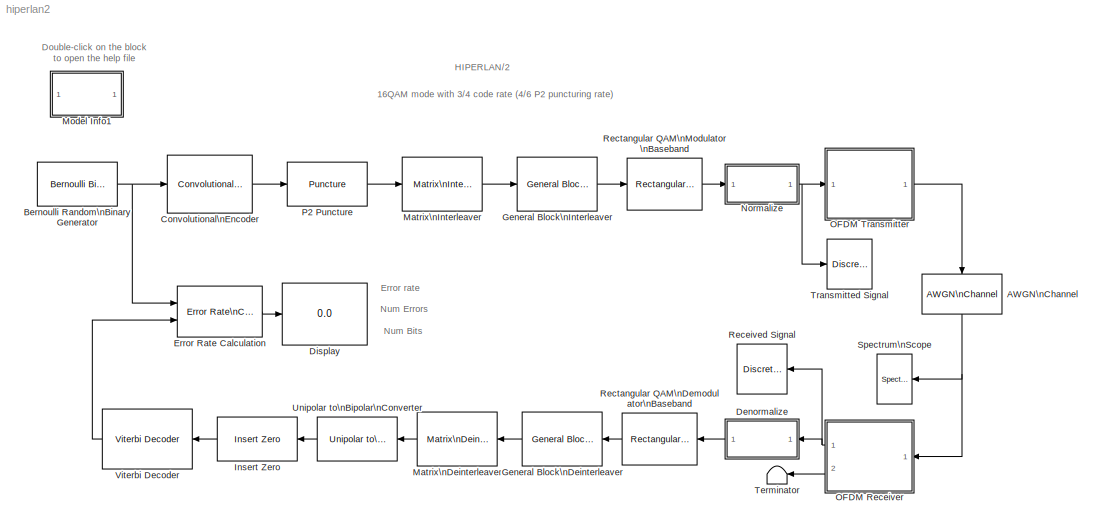
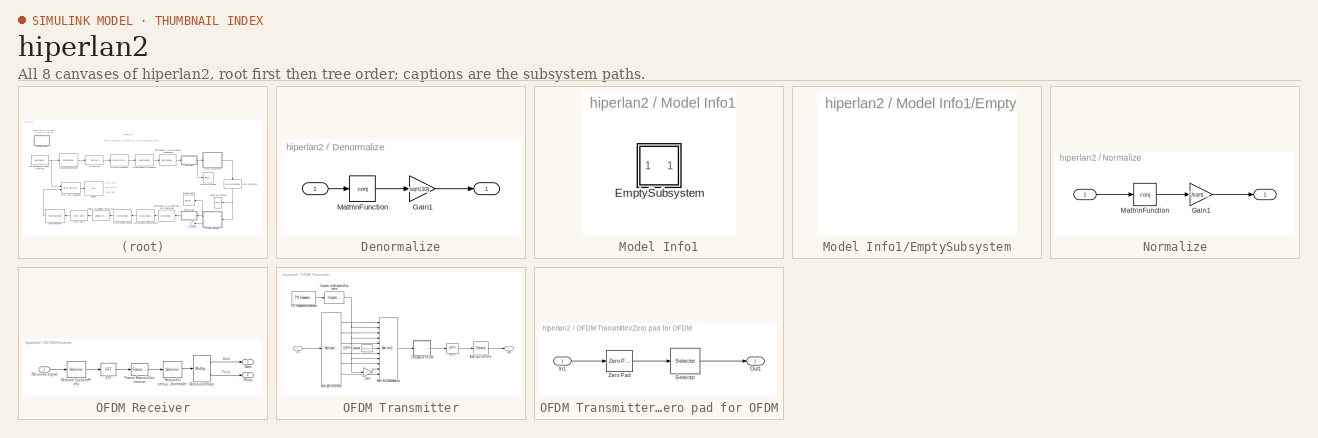
[diagram: thumbnail index - all 8 canvases of the model, root first then tree order]
MODEL hiperlan2
KIND model
BLOCK [Reference] AWGN\nChannel  REF=commchan2/AWGN\nChannel
  EbNodB = 10
  EsNodB = 40
  Ports = [1, 1]
  Ps = 0.01
  SNRdB = 15
  ShowPortLabels = on
  SourceBlock = commchan2/AWGN\nChannel
  SourceType = AWGN Channel
  Tsym = 4e-6/80
  bitsPerSym = 1
  noiseMode = Signal to noise ratio  (SNR)
  seed = 1
  variance = 1
BLOCK [Reference] Bernoulli Random\nBinary Generator  REF=commrandsrc2/Bernoulli Binary\nGenerator
  P = 0.5
  Ports = [0, 1]
  ShowPortLabels = on
  SourceBlock = commrandsrc2/Bernoulli Binary\nGenerator
  SourceType = Bernoulli Binary Generator
  Ts = 4e-6/144
  frameBased = on
  orient = off
  sampPerFrame = 144
  seed = 20394875
BLOCK [Reference] Convolutional\nEncoder  REF=commcnvcod2/Convolutional\nEncoder
  Ports = [1, 1]
  SourceBlock = commcnvcod2/Convolutional\nEncoder
  SourceType = Convolutional Encoder
  reset = None
  trellis = poly2trellis(7, [133 171])
BLOCK [SubSystem] Denormalize
  MaskDisplay = disp('Denormalize');
  MaskIconFrame = on
  MaskIconOpaque = on
  MaskIconRotate = none
  MaskIconUnits = autoscale
  MinAlgLoopOccurrences = off
  Ports = [1, 1]
  PropExecContextAcrossSSBoundary = on
  RTWSystemCode = Auto
  TreatAsAtomicUnit = off
BLOCK [Outport] Denormalize/  
  BusOutputAsStruct = off
  IconDisplay = Port number
BLOCK [Inport] Denormalize/   
  IconDisplay = Port number
  LatchInput = off
BLOCK [Gain] Denormalize/Gain1
  Gain = sqrt(10)
BLOCK [Math] Denormalize/Math\nFunction
  Operator = conj
  Ports = [1, 1]
BLOCK [Display] Display
  Decimation = 1
  Ports = [1]
BLOCK [Reference] Error Rate Calculation  REF=commsink2/Error Rate\nCalculation
  N = 34
  PMode = Port
  Ports = [2, 1]
  RsMode2 = off
  SourceBlock = commsink2/Error Rate\nCalculation
  SourceType = Error Rate Calculation
  WsName = ErrorVec
  cp_mode = Entire frame
  maxBits = 1e6
  numErr = 100
  st_delay = 0
  stop = off
  subframe = []
BLOCK [Reference] General Block\nDeinterleaver  REF=commblkintrlv2/General Block\nDeinterleaver
  Ports = [1, 1]
  SourceBlock = commblkintrlv2/General Block\nDeinterleaver
  SourceType = General Block Deinterleaver
  elements = [ 2*floor( [0:191]/2 ) + mod( ([0:191] + 192 - floor( 16*[0:191]/192 ) ) ,2 ) + 1]'
BLOCK [Reference] General Block\nInterleaver  REF=commblkintrlv2/General Block\nInterleaver
  Ports = [1, 1]
  SourceBlock = commblkintrlv2/General Block\nInterleaver
  SourceType = General Block Interleaver
  elements = [ 2*floor( [0:191]/2 ) + mod( ([0:191] + 192 - floor( 16*[0:191]/192 ) ) ,2 ) + 1]'
BLOCK [Reference] Insert Zero  REF=commsequence2/Insert Zero
  Ports = [1, 1]
  SourceBlock = commsequence2/Insert Zero
  SourceType = Insert Zero
  insertZeroVector = [1 1 1 0 0 1]'
BLOCK [Reference] Matrix\nDeinterleaver  REF=commblkintrlv2/Matrix\nDeinterleaver
  Ncols = 12
  Nrows = 16
  Ports = [1, 1]
  ShowPortLabels = on
  SourceBlock = commblkintrlv2/Matrix\nDeinterleaver
  SourceType = Matrix Deinterleaver
BLOCK [Reference] Matrix\nInterleaver  REF=commblkintrlv2/Matrix\nInterleaver
  Ncols = 12
  Nrows = 16
  Ports = [1, 1]
  ShowPortLabels = on
  SourceBlock = commblkintrlv2/Matrix\nInterleaver
  SourceType = Matrix Interleaver
BLOCK [SubSystem] Model Info1
  CopyFcn = slcm CopyBlock;
  DeleteFcn = slcm Cancel;
  InitFcn = slcm('UpdateAllCMBlocksInThisModelInit')
  LoadFcn = slcm LoadBlock;
  MaskCallbackString = ||||||||||||||||||||||||||||||
  MaskDescription = This block allows revision control information to be displayed within the model.
  MaskDisplay = text(str2num(LeftAlignmentValue), 0.5, MaskDisplayString, 'HorizontalAlignment', HorizontalTextAlignment)\n
  MaskEnableString = on,on,on,on,on,on,on,on,on,on,on,on,on,on,on,on,on,on,on,on,on,on,on,on,on,on,on,on,on,on,on
  MaskIconFrame = on
  MaskIconOpaque = on
  MaskIconRotate = none
  MaskIconUnits = normalized
  MaskPromptString = InitialSaveTempField|InitialBlockCM|BlockCM|Frame|SaveTempField|DisplayStringWithTags|MaskDisplayString|HorizontalTextAlignment|LeftAlignmentValue|SourceBlockDiagram|TagMaxNumber|CMTag1|CMTag2|CMTag3|CMTag4|CMTag5|CMTag6|CMTag7|CMTag8|CMTag9|CMTag10|CMTag11|CMTag12|CMTag13|CMTag14|CMTag15|CMTag16|CMTag17|CMTag18|CMTag19|CMTag20
  MaskSelfModifiable = on
  MaskStyleString = edit,edit,edit,edit,edit,edit,edit,edit,edit,edit,edit,edit,edit,edit,edit,edit,edit,edit,edit,edit,edit,edit,edit,edit,edit,edit,edit,edit,edit,edit,edit
  MaskTabNameString = ,,,,,,,,,,,,,,,,,,,,,,,,,,,,,,
  MaskToolTipString = on,on,on,on,on,on,on,on,on,on,on,on,on,on,on,on,on,on,on,on,on,on,on,on,on,on,on,on,on,on,on
  MaskTunableValueString = on,on,on,on,on,on,on,on,on,on,on,on,on,on,on,on,on,on,on,on,on,on,on,on,on,on,on,on,on,on,on
  MaskType = CMBlock
  MaskValueString = |None|None|on||Info|Info|Center|0.5|hiperlan2|20||||||||||||||||||||
  MaskVarAliasString = ,,,,,,,,,,,,,,,,,,,,,,,,,,,,,,
  MaskVariables = InitialSaveTempField=&1;InitialBlockCM=&2;BlockCM=&3;Frame=&4;SaveTempField=&5;DisplayStringWithTags=&6;MaskDisplayString=&7;HorizontalTextAlignment=&8;LeftAlignmentValue=&9;SourceBlockDiagram=&10;TagMaxNumber=@11;CMTag1=&12;CMTag2=&13;CMTag3=&14;CMTag4=&15;CMTag5=&16;CMTag6=&17;CMTag7=&18;CMTag8=&19;CMTag9=&20;CMTag10=&21;CMTag11=&22;CMTag12=&23;CMTag13=&24;CMTag14=&25;CMTag15=&26;CMTag16=&27;CMT...<+45ch>
  MaskVisibilityString = off,off,off,off,off,off,off,off,off,off,off,off,off,off,off,off,off,off,off,off,off,off,off,off,off,off,off,off,off,off,off
  MinAlgLoopOccurrences = off
  NameChangeFcn = slcm Rename;
  OpenFcn = commdemohelp;
  Ports = []
  PostSaveFcn = slcm('UpdateAllCMBlocksInThisModel')
  PropExecContextAcrossSSBoundary = on
  RTWSystemCode = Auto
  TreatAsAtomicUnit = off
BLOCK [SubSystem] Model Info1/EmptySubsystem
  MinAlgLoopOccurrences = off
  Ports = []
  PropExecContextAcrossSSBoundary = on
  RTWSystemCode = Auto
  TreatAsAtomicUnit = off
BLOCK [SubSystem] Normalize
  MaskDisplay = disp('Normalize')
  MaskIconFrame = on
  MaskIconOpaque = on
  MaskIconRotate = none
  MaskIconUnits = autoscale
  MinAlgLoopOccurrences = off
  Ports = [1, 1]
  PropExecContextAcrossSSBoundary = on
  RTWSystemCode = Auto
  TreatAsAtomicUnit = off
BLOCK [Outport] Normalize/  
  BusOutputAsStruct = off
  IconDisplay = Port number
BLOCK [Inport] Normalize/   
  IconDisplay = Port number
  LatchInput = off
BLOCK [Gain] Normalize/Gain1
  Gain = 1/sqrt(10)
BLOCK [Math] Normalize/Math\nFunction
  Operator = conj
  Ports = [1, 1]
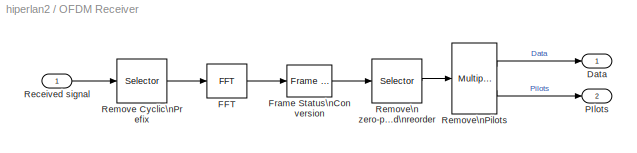
BLOCK [SubSystem] OFDM Receiver
  MaskDisplay = disp('OFDM\\nReceiver');\nport_label('output',2,'pilots')
  MaskIconFrame = on
  MaskIconOpaque = on
  MaskIconRotate = none
  MaskIconUnits = autoscale
  MinAlgLoopOccurrences = off
  Ports = [1, 2]
  PropExecContextAcrossSSBoundary = on
  RTWSystemCode = Auto
  TreatAsAtomicUnit = off
BLOCK [Outport] OFDM Receiver/Data
  BusOutputAsStruct = off
  IconDisplay = Port number
BLOCK [Reference] OFDM Receiver/FFT  REF=dspxfrm3/FFT
  BitRevOrder = off
  CompMethod = Table lookup
  Ports = [1, 1]
  SkipNorm = off
  SourceBlock = dspxfrm3/FFT
  SourceType = FFT
  TableOpt = Speed
  accumFracLength = 30
  accumMode = Same as product output
  accumWordLength = 32
  additionalParams = off
  allowOverrides = on
  firstCoeffFracLength = 15
  firstCoeffMode = User-defined
  firstCoeffWordLength = 16
  outputFracLength = 15
  outputMode = Same as input
  outputWordLength = 16
  overflowMode = off
  prodOutputFracLength = 30
  prodOutputMode = Same as input
  prodOutputWordLength = 32
  roundingMode = Floor
BLOCK [Reference] OFDM Receiver/Frame Status\nConversion  REF=dspsigattribs/Frame Status\nConversion
  Ports = [1, 1]
  ShowPortLabels = off
  SourceBlock = dspsigattribs/Frame Status\nConversion
  SourceType = Frame Status Conversion
  growRefPort = off
  outframe = Frame-based
BLOCK [Outport] OFDM Receiver/PIlots
  BusOutputAsStruct = off
  IconDisplay = Port number
  Port = 2
BLOCK [Inport] OFDM Receiver/Received signal
  IconDisplay = Port number
  LatchInput = off
BLOCK [Selector] OFDM Receiver/Remove Cyclic\nPrefix
  Elements = [17:80]
  InputPortWidth = 80
  Ports = [1, 1]
BLOCK [Selector] OFDM Receiver/Remove\n zero-padding\nand\nreorder
  Elements = [39:64 1:27]
  InputPortWidth = 64
  Ports = [1, 1]
BLOCK [Reference] OFDM Receiver/Remove\nPilots  REF=dspindex/Multiport\nSelector
  Ports = [1, 2]
  SourceBlock = dspindex/Multiport\nSelector
  SourceType = Multiport Selector
  idxCellArray = {[1:5 7:19 21:26 28:33 35:47 49:53],[6 20 34 48]}
  idxErrMode = Clip Index
  rowsOrCols = Rows
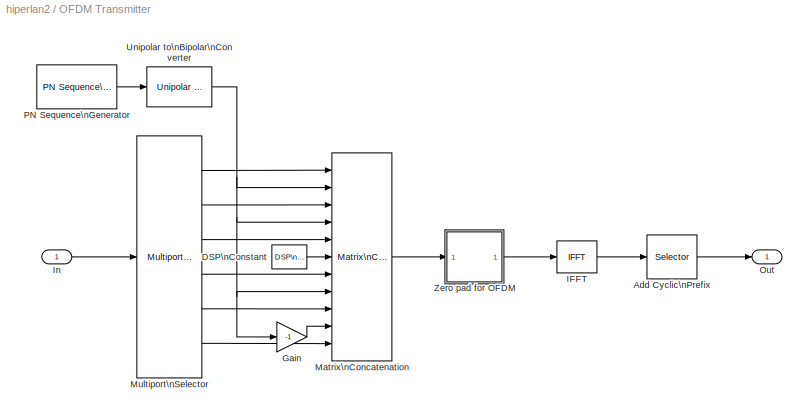
BLOCK [SubSystem] OFDM Transmitter
  MaskDisplay = disp('OFDM\\nTransmitter')
  MaskIconFrame = on
  MaskIconOpaque = on
  MaskIconRotate = none
  MaskIconUnits = autoscale
  MinAlgLoopOccurrences = off
  Ports = [1, 1]
  PropExecContextAcrossSSBoundary = on
  RTWSystemCode = Auto
  TreatAsAtomicUnit = off
BLOCK [Selector] OFDM Transmitter/Add Cyclic\nPrefix
  Elements = [49:64 1:64]
  InputPortWidth = 64
  Ports = [1, 1]
BLOCK [Reference] OFDM Transmitter/DSP\nConstant  REF=dspsrcs4/DSP\nConstant
  FramebasedOutput = on
  InterpretAs1D = off
  Ports = [0, 1]
  SampleMode = Discrete
  ShowPortLabels = on
  SourceBlock = dspsrcs4/DSP\nConstant
  SourceType = DSP Constant
  Ts = 4e-6
  Value = 0+0i
  additionalParams = off
  allowOverrides = on
  continuousOutput = Sample-based
  dataType = Inherit from 'Constant value'
  discreteOutput = Frame-based
  fracBitsMode = Best precision
  framePeriod = 4e-6
  numFracBits = 15
  sampTime = 4e-6
  udDataType = sfix(16)
  wordLen = 16
BLOCK [Gain] OFDM Transmitter/Gain
  Gain = -1
BLOCK [Reference] OFDM Transmitter/IFFT  REF=dspxfrm3/IFFT
  BitRevOrder = off
  CompMethod = Table lookup
  Ports = [1, 1]
  SkipNorm = off
  SourceBlock = dspxfrm3/IFFT
  SourceType = IFFT
  TableOpt = Speed
  accumFracLength = 30
  accumMode = Same as product output
  accumWordLength = 32
  additionalParams = off
  allowOverrides = on
  cs_in = off
  firstCoeffFracLength = 15
  firstCoeffMode = User-defined
  firstCoeffWordLength = 16
  mode = Complex
  outputFracLength = 15
  outputMode = Same as input
  outputWordLength = 16
  overflowMode = off
  prodOutputFracLength = 30
  prodOutputMode = Same as input
  prodOutputWordLength = 32
  roundingMode = Floor
BLOCK [Inport] OFDM Transmitter/In
  IconDisplay = Port number
  LatchInput = off
BLOCK [Reference] OFDM Transmitter/Matrix\nConcatenation  REF=simulink/Math\nOperations/Matrix\nConcatenation
  Ports = [11, 1]
  SourceBlock = simulink/Math\nOperations/Matrix\nConcatenation
  SourceType = Matrix Concatenation
  catMethod = Vertical
  numInports = 11
BLOCK [Reference] OFDM Transmitter/Multiport\nSelector  REF=dspindex/Multiport\nSelector
  Ports = [1, 6]
  SourceBlock = dspindex/Multiport\nSelector
  SourceType = Multiport Selector
  idxCellArray = {1:5,6:18,19:24,25:30,31:43,44:48}
  idxErrMode = Clip Index
  rowsOrCols = Rows
BLOCK [Outport] OFDM Transmitter/Out
  BusOutputAsStruct = off
  IconDisplay = Port number
BLOCK [Reference] OFDM Transmitter/PN Sequence\nGenerator  REF=commseqgen2/PN Sequence\nGenerator
  Ports = [0, 1]
  SourceBlock = commseqgen2/PN Sequence\nGenerator
  SourceType = PN Sequence Generator
  Ts = 4e-6
  frameBased = off
  ini_sta = [1 1 1 1 1 1 1]
  poly = [1 0 0 1 0 0 0 1]
  reset = off
  sampPerFrame = 1
  shift = 0
BLOCK [Reference] OFDM Transmitter/Unipolar to\nBipolar\nConverter  REF=commutil2/Unipolar to\nBipolar\nConverter
  M = 2
  Ports = [1, 1]
  ShowPortLabels = on
  SourceBlock = commutil2/Unipolar to\nBipolar\nConverter
  SourceType = Unipolar to Bipolar Converter
  polarity = Negative
BLOCK [SubSystem] OFDM Transmitter/Zero pad for OFDM
  MaskDisplay = disp('Zero pad\\nfor OFDM');
  MaskIconFrame = on
  MaskIconOpaque = on
  MaskIconRotate = none
  MaskIconUnits = autoscale
  MinAlgLoopOccurrences = off
  Ports = [1, 1]
  PropExecContextAcrossSSBoundary = on
  RTWSystemCode = Auto
  TreatAsAtomicUnit = off
BLOCK [Inport] OFDM Transmitter/Zero pad for OFDM/In1
  IconDisplay = Port number
  LatchInput = off
BLOCK [Outport] OFDM Transmitter/Zero pad for OFDM/Out1
  BusOutputAsStruct = off
  IconDisplay = Port number
BLOCK [Selector] OFDM Transmitter/Zero pad for OFDM/Selector
  Elements = [27:64 1:26]
  InputPortWidth = 64
  Ports = [1, 1]
BLOCK [Reference] OFDM Transmitter/Zero pad for OFDM/Zero Pad  REF=dspsigops/Zero Pad
  Ports = [1, 1]
  SourceBlock = dspsigops/Zero Pad
  SourceType = Zero Pad
  numOutCols = 1
  numOutRows = 64
  padNumOutColsSpecMethod = User-specified
  padNumOutRowsSpecMethod = User-specified
  padSigAt = End
  trunc_flag = None
  zpadAlong = Columns
BLOCK [Reference] P2 Puncture  REF=commsequence2/Puncture
  Ports = [1, 1]
  SourceBlock = commsequence2/Puncture
  SourceType = Puncture
  punctureVector = [1 1 1 0 0 1]'
BLOCK [Reference] Received Signal  REF=commsink2/Discrete-Time\nScatter Plot\nScope
  AxisGrid = on
  FigPos = figposition([54    51    35    40])
  FrameNumber = off
  LineColors = b
  LineMarkers = .
  Ports = [1]
  ShowPortLabels = on
  SourceBlock = commsink2/Discrete-Time\nScatter Plot\nScope
  SourceType = Discrete-Time Scatter Plot Scope
  Tag = ScatterPlot
  block_type_ = scatter
  fading = on
  figTitle = Scatter Plot
  inphaseLabel = In-phase Amplitude
  numLinesMax = 8
  numNewFrames = 80
  numTraces = 160
  offsetEye = 0
  openScopeAtSimStart = on
  quadratureLabel = Quadrature Amplitude
  render = off
  sampPerSymb = 1
  xMax = 1.5
  xMin = -1.5
  yMax = 1.5
  yMin = -1.5
BLOCK [Reference] Rectangular QAM\nDemodulator\nBaseband  REF=commdigbbndam2/Rectangular QAM\nDemodulator\nBaseband
  AvgPow = 1
  Dec = Gray
  M = 16
  MinDist = 2
  OutType = Bit
  PeakPow = 1
  Ph = 0
  Ports = [1, 1]
  PowType = Min. distance between symbols
  SourceBlock = commdigbbndam2/Rectangular QAM\nDemodulator\nBaseband
  SourceType = Rectangular QAM Demodulator Baseband
  numSamp = 1
BLOCK [Reference] Rectangular QAM\nModulator\nBaseband  REF=commdigbbndam2/Rectangular QAM\nModulator\nBaseband
  AvgPow = 1
  Enc = Gray
  InType = Bit
  M = 16
  MinDist = 2
  PeakPow = 1
  Ph = 0
  Ports = [1, 1]
  PowType = Min. distance between symbols
  SourceBlock = commdigbbndam2/Rectangular QAM\nModulator\nBaseband
  SourceType = Rectangular QAM Modulator Baseband
  numSamp = 1
BLOCK [Reference] Spectrum\nScope  REF=dspsnks4/Spectrum\nScope
  AxisGrid = on
  AxisLegend = off
  AxisProperties = off
  AxisZoom = off
  BufferSize = 80
  DisplayProperties = off
  Domain = Frequency
  FFTlength = 1024
  FigPos = figposition([25    15    42    27])
  FrameNumber = on
  HorizSpan = 1
  InheritXIncr = off
  LineProperties = off
  Memory = off
  OpenScopeAtSimStart = on
  OpenScopeImmediately = off
  Overlap = 0
  Ports = [1]
  ScopeProperties = off
  ShowPortLabels = off
  SourceBlock = dspsnks4/Spectrum\nScope
  SourceType = Spectrum Scope
  UseBuffer = on
  XIncr = 1.0
  XLabel = Samples
  XRange = [-Fs/2...Fs/2]
  XUnits = Hertz
  YLabel = Magnitude, dB
  YMax = 0
  YMin = -60
  YUnits = dB
  inpFftLenInherit = on
  numAvg = 10
BLOCK [Terminator] Terminator
BLOCK [Reference] Transmitted Signal  REF=commsink2/Discrete-Time\nScatter Plot\nScope
  AxisGrid = on
  FigPos = figposition([7    51    35    40])
  FrameNumber = off
  LineColors = r
  LineMarkers = .
  Ports = [1]
  ShowPortLabels = on
  SourceBlock = commsink2/Discrete-Time\nScatter Plot\nScope
  SourceType = Discrete-Time Scatter Plot Scope
  Tag = ScatterPlot
  block_type_ = scatter
  fading = off
  figTitle = Scatter Plot
  inphaseLabel = In-phase Amplitude
  numLinesMax = 8
  numNewFrames = 60
  numTraces = 60
  offsetEye = 0
  openScopeAtSimStart = on
  quadratureLabel = Quadrature Amplitude
  render = on
  sampPerSymb = 1
  xMax = 1.5
  xMin = -1.5
  yMax = 1.5
  yMin = -1.5
BLOCK [Reference] Unipolar to\nBipolar\nConverter  REF=commutil2/Unipolar to\nBipolar\nConverter
  M = 2
  Ports = [1, 1]
  ShowPortLabels = on
  SourceBlock = commutil2/Unipolar to\nBipolar\nConverter
  SourceType = Unipolar to Bipolar Converter
  polarity = Negative
BLOCK [Reference] Viterbi Decoder  REF=commcnvcod2/Viterbi Decoder
  Ports = [1, 1]
  SourceBlock = commcnvcod2/Viterbi Decoder
  SourceType = Viterbi Decoder
  dectype = Unquantized
  nsdecb = 4
  opmode = Continuous
  reset = off
  tbdepth = 34
  trellis = poly2trellis(7, [133 171])
ANNOTATION (root): 16QAM mode with 3/4 code rate (4/6 P2 puncturing rate)
ANNOTATION (root): Double-click on the block\nto open the help file
ANNOTATION (root): Error rate
ANNOTATION (root): HIPERLAN/2
ANNOTATION (root): Num Bits
ANNOTATION (root): Num Errors
ANNOTATION (root): \n
NET AWGN\nChannel:1 -> OFDM Receiver:1, Spectrum\nScope:1
NET Bernoulli Random\nBinary Generator:1 -> Convolutional\nEncoder:1, Error Rate Calculation:1
LINE Convolutional\nEncoder:1 -> P2 Puncture:1
LINE Denormalize/   :1 -> Denormalize/Math\nFunction:1
LINE Denormalize/Gain1:1 -> Denormalize/  :1
LINE Denormalize/Math\nFunction:1 -> Denormalize/Gain1:1
LINE Denormalize:1 -> Rectangular QAM\nDemodulator\nBaseband:1
LINE Error Rate Calculation:1 -> Display:1
LINE General Block\nDeinterleaver:1 -> Matrix\nDeinterleaver:1
LINE General Block\nInterleaver:1 -> Rectangular QAM\nModulator\nBaseband:1
LINE Insert Zero:1 -> Viterbi Decoder:1
LINE Matrix\nDeinterleaver:1 -> Unipolar to\nBipolar\nConverter:1
LINE Matrix\nInterleaver:1 -> General Block\nInterleaver:1
LINE Normalize/   :1 -> Normalize/Math\nFunction:1
LINE Normalize/Gain1:1 -> Normalize/  :1
LINE Normalize/Math\nFunction:1 -> Normalize/Gain1:1
NET Normalize:1 -> OFDM Transmitter:1, Transmitted Signal:1
LINE OFDM Receiver/FFT:1 -> OFDM Receiver/Frame Status\nConversion:1
LINE OFDM Receiver/Frame Status\nConversion:1 -> OFDM Receiver/Remove\n zero-padding\nand\nreorder:1
LINE OFDM Receiver/Received signal:1 -> OFDM Receiver/Remove Cyclic\nPrefix:1
LINE OFDM Receiver/Remove Cyclic\nPrefix:1 -> OFDM Receiver/FFT:1
LINE OFDM Receiver/Remove\n zero-padding\nand\nreorder:1 -> OFDM Receiver/Remove\nPilots:1
LINE OFDM Receiver/Remove\nPilots:1 -> OFDM Receiver/Data:1
LINE OFDM Receiver/Remove\nPilots:2 -> OFDM Receiver/PIlots:1
NET OFDM Receiver:1 -> Denormalize:1, Received Signal:1
LINE OFDM Receiver:2 -> Terminator:1
LINE OFDM Transmitter/Add Cyclic\nPrefix:1 -> OFDM Transmitter/Out:1
LINE OFDM Transmitter/DSP\nConstant:1 -> OFDM Transmitter/Matrix\nConcatenation:6
LINE OFDM Transmitter/Gain:1 -> OFDM Transmitter/Matrix\nConcatenation:10
LINE OFDM Transmitter/IFFT:1 -> OFDM Transmitter/Add Cyclic\nPrefix:1
LINE OFDM Transmitter/In:1 -> OFDM Transmitter/Multiport\nSelector:1
LINE OFDM Transmitter/Matrix\nConcatenation:1 -> OFDM Transmitter/Zero pad for OFDM:1
LINE OFDM Transmitter/Multiport\nSelector:1 -> OFDM Transmitter/Matrix\nConcatenation:1
LINE OFDM Transmitter/Multiport\nSelector:2 -> OFDM Transmitter/Matrix\nConcatenation:3
LINE OFDM Transmitter/Multiport\nSelector:3 -> OFDM Transmitter/Matrix\nConcatenation:5
LINE OFDM Transmitter/Multiport\nSelector:4 -> OFDM Transmitter/Matrix\nConcatenation:7
LINE OFDM Transmitter/Multiport\nSelector:5 -> OFDM Transmitter/Matrix\nConcatenation:9
LINE OFDM Transmitter/Multiport\nSelector:6 -> OFDM Transmitter/Matrix\nConcatenation:11
LINE OFDM Transmitter/PN Sequence\nGenerator:1 -> OFDM Transmitter/Unipolar to\nBipolar\nConverter:1
NET OFDM Transmitter/Unipolar to\nBipolar\nConverter:1 -> OFDM Transmitter/Gain:1, OFDM Transmitter/Matrix\nConcatenation:2, OFDM Transmitter/Matrix\nConcatenation:4, OFDM Transmitter/Matrix\nConcatenation:8
LINE OFDM Transmitter/Zero pad for OFDM/In1:1 -> OFDM Transmitter/Zero pad for OFDM/Zero Pad:1
LINE OFDM Transmitter/Zero pad for OFDM/Selector:1 -> OFDM Transmitter/Zero pad for OFDM/Out1:1
LINE OFDM Transmitter/Zero pad for OFDM/Zero Pad:1 -> OFDM Transmitter/Zero pad for OFDM/Selector:1
LINE OFDM Transmitter/Zero pad for OFDM:1 -> OFDM Transmitter/IFFT:1
LINE OFDM Transmitter:1 -> AWGN\nChannel:1
LINE P2 Puncture:1 -> Matrix\nInterleaver:1
LINE Rectangular QAM\nDemodulator\nBaseband:1 -> General Block\nDeinterleaver:1
LINE Rectangular QAM\nModulator\nBaseband:1 -> Normalize:1
LINE Unipolar to\nBipolar\nConverter:1 -> Insert Zero:1
LINE Viterbi Decoder:1 -> Error Rate Calculation:2
note: NET lines group one-source signal fan-out (src -> all destinations, sorted); 1:1 wires keep LINE
